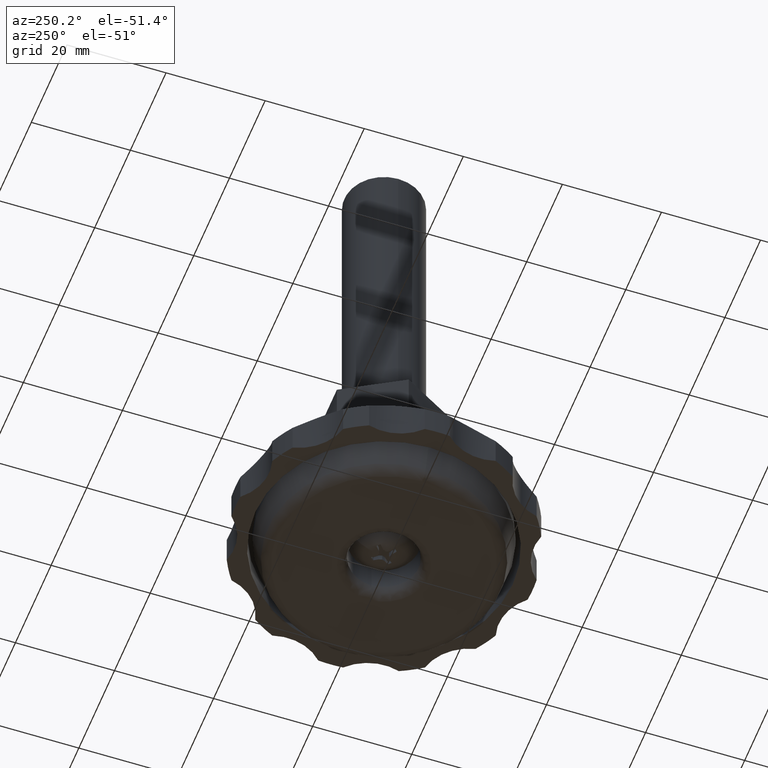
[diagram: clean part render]
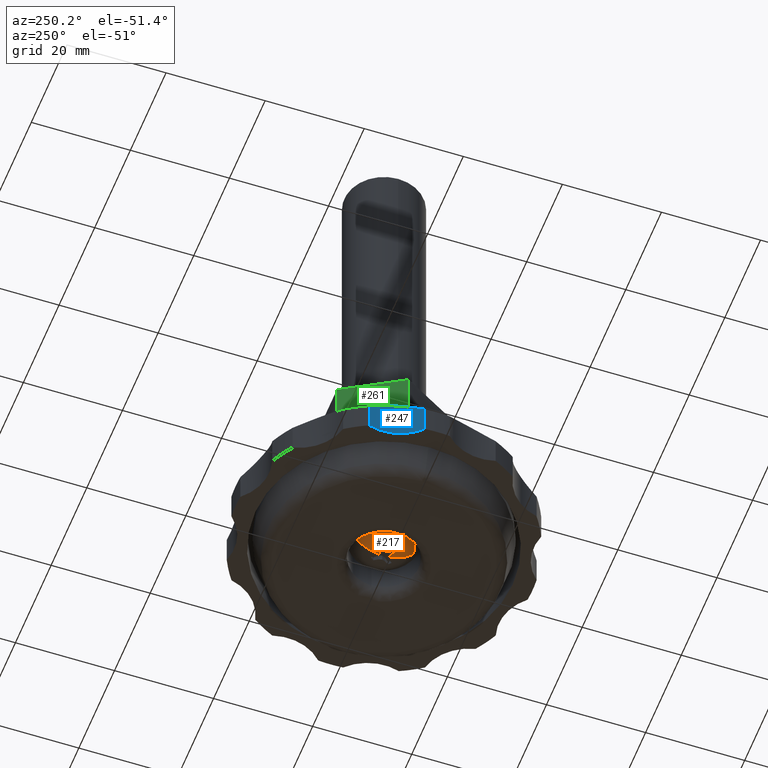
[diagram: same view with three faces highlighted in distinct colors, each labeled with its STEP entity id]
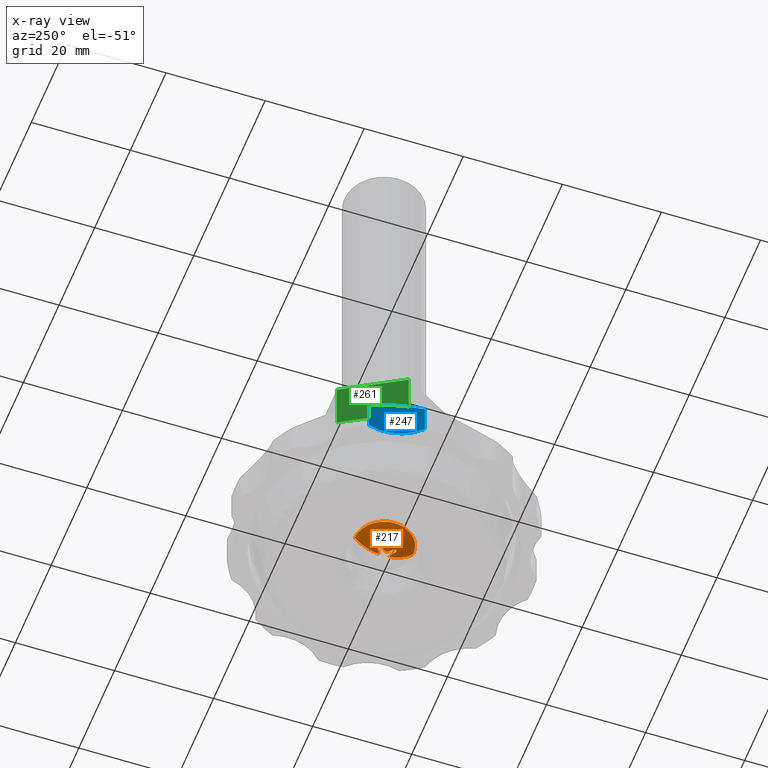
[diagram: x-ray of the same camera — body ghosted, the three highlighted faces saturated]
A machine part, auxiliary view with three faces highlighted in distinct colors.
The next image is the same camera in x-ray (body ghosted, the three faces saturated) — at least one of them is partly hidden behind the body in this view.
Their STEP definitions:

[orange] entity #217 — the highlighted spherical surface has radius 7.3017 mm.
#217=ADVANCED_FACE('',(#608),#607,.T.);
#607=SPHERICAL_SURFACE('',#1545,7.30166666667E+00);
#608=FACE_OUTER_BOUND('',#1546,.T.);
#1542=CARTESIAN_POINT('',(0.00000000000E+00,0.00000000000E+00,1.25016666667E+01));
#1543=DIRECTION('',(0.00000000000E+00,0.00000000000E+00,-1.00000000000E+00));
#1544=DIRECTION('',(1.60816309500E-16,-1.00000000000E+00,0.00000000000E+00));
#1545=AXIS2_PLACEMENT_3D('',#1542,#1543,#1544);
#1546=EDGE_LOOP('',(#2319,#2320,#2321,#2322,#2323,#2324,#2325,#2326,#2327,#2328,#2329,#2330,#2331,#2332));
#2319=ORIENTED_EDGE('',*,*,#2756,.T.);
#2320=ORIENTED_EDGE('',*,*,#2754,.T.);
#2321=ORIENTED_EDGE('',*,*,#2752,.T.);
#2322=ORIENTED_EDGE('',*,*,#2750,.T.);
#2323=ORIENTED_EDGE('',*,*,#2748,.T.);
#2324=ORIENTED_EDGE('',*,*,#2746,.T.);
#2325=ORIENTED_EDGE('',*,*,#2744,.T.);
#2326=ORIENTED_EDGE('',*,*,#2726,.T.);
#2327=ORIENTED_EDGE('',*,*,#2767,.T.);
#2328=ORIENTED_EDGE('',*,*,#2769,.T.);
#2329=ORIENTED_EDGE('',*,*,#2775,.F.);
#2330=ORIENTED_EDGE('',*,*,#2716,.T.);
#2331=ORIENTED_EDGE('',*,*,#2718,.T.);
#2332=ORIENTED_EDGE('',*,*,#2776,.T.);
#2716=EDGE_CURVE('',#3099,#3100,#3101,.T.);
#2718=EDGE_CURVE('',#3100,#3107,#3114,.T.);
#2726=EDGE_CURVE('',#3149,#3163,#3170,.T.);
#2744=EDGE_CURVE('',#3286,#3149,#3293,.T.);
#2746=EDGE_CURVE('',#3299,#3286,#3306,.T.);
#2748=EDGE_CURVE('',#3312,#3299,#3319,.T.);
#2750=EDGE_CURVE('',#3325,#3312,#3332,.T.);
#2752=EDGE_CURVE('',#3338,#3325,#3345,.T.);
#2754=EDGE_CURVE('',#3351,#3338,#3358,.T.);
#2756=EDGE_CURVE('',#3364,#3351,#3371,.T.);
#2767=EDGE_CURVE('',#3163,#3435,#3442,.T.);
#2769=EDGE_CURVE('',#3435,#3448,#3455,.T.);
#2775=EDGE_CURVE('',#3099,#3448,#3492,.T.);
#2776=EDGE_CURVE('',#3107,#3364,#3498,.T.);
#3099=VERTEX_POINT('',#4746);
#3100=VERTEX_POINT('',#4747);
#3101=CIRCLE('',#4751,5.90000000000E+00);
#3107=VERTEX_POINT('',#4752);
#3114=CIRCLE('',#4760,5.90000000000E+00);
#3149=VERTEX_POINT('',#4782);
#3163=VERTEX_POINT('',#4791);
#3170=CIRCLE('',#4798,2.50000000000E+00);
#3286=VERTEX_POINT('',#4863);
#3293=CIRCLE('',#4870,7.28704093264E+00);
#3299=VERTEX_POINT('',#4871);
#3306=CIRCLE('',#4878,7.23723994764E+00);
#3312=VERTEX_POINT('',#4879);
#3319=CIRCLE('',#4886,7.23714202841E+00);
#3325=VERTEX_POINT('',#4887);
#3332=CIRCLE('',#4894,7.28704093264E+00);
#3338=VERTEX_POINT('',#4895);
#3345=CIRCLE('',#4902,2.50000000000E+00);
#3351=VERTEX_POINT('',#4903);
#3358=CIRCLE('',#4910,7.28690101949E+00);
#3364=VERTEX_POINT('',#4911);
#3371=CIRCLE('',#4918,7.23720428537E+00);
#3435=VERTEX_POINT('',#4955);
#3442=CIRCLE('',#4962,7.28690101949E+00);
#3448=VERTEX_POINT('',#4963);
#3455=CIRCLE('',#4970,7.23711870020E+00);
#3492=(BOUNDED_CURVE() B_SPLINE_CURVE(2,(#4987,#4988,#4989),.UNSPECIFIED.,.F.,.F.) B_SPLINE_CURVE_WITH_KNOTS((3,3),(0.00000000000E+00,9.99874347447E-01),.UNSPECIFIED.) CURVE() GEOMETRIC_REPRESENTATION_ITEM() RATIONAL_B_SPLINE_CURVE((1.00000000000E+00,9.21219301708E-01,9.99980202008E-01)) REPRESENTATION_ITEM('') );
#3498=(BOUNDED_CURVE() B_SPLINE_CURVE(2,(#4990,#4991,#4992),.UNSPECIFIED.,.F.,.F.) B_SPLINE_CURVE_WITH_KNOTS((3,3),(0.00000000000E+00,1.00000000000E+00),.UNSPECIFIED.) CURVE() GEOMETRIC_REPRESENTATION_ITEM() RATIONAL_B_SPLINE_CURVE((7.50000000000E-01,6.90907051101E-01,7.50000000000E-01)) REPRESENTATION_ITEM('') );
#4746=CARTESIAN_POINT('',(-1.58802941861E-07,-5.90000000000E+00,8.20000000000E+00));
#4747=CARTESIAN_POINT('',(-5.90000000000E+00,0.00000000000E+00,8.20000000000E+00));
#4748=CARTESIAN_POINT('',(0.00000000000E+00,0.00000000000E+00,8.20000000000E+00));
#4749=DIRECTION('',(-0.00000000000E+00,0.00000000000E+00,-1.00000000000E+00));
#4750=DIRECTION('',(-1.00000000000E+00,-1.22460635382E-16,0.00000000000E+00));
#4751=AXIS2_PLACEMENT_3D('',#4748,#4749,#4750);
#4752=CARTESIAN_POINT('',(6.12313901473E-04,5.89999996823E+00,8.20000000000E+00));
#4757=CARTESIAN_POINT('',(0.00000000000E+00,0.00000000000E+00,8.20000000000E+00));
#4758=DIRECTION('',(-0.00000000000E+00,0.00000000000E+00,-1.00000000000E+00));
#4759=DIRECTION('',(-1.00000000000E+00,-1.22460635382E-16,0.00000000000E+00));
#4760=AXIS2_PLACEMENT_3D('',#4757,#4758,#4759);
#4782=CARTESIAN_POINT('',(-2.03962195924E+00,-1.44566326072E+00,5.64132147775E+00));
#4791=CARTESIAN_POINT('',(-1.44566360983E+00,-2.03962171179E+00,5.64132147775E+00));
#4795=CARTESIAN_POINT('',(0.00000000000E+00,0.00000000000E+00,5.64132147775E+00));
#4796=DIRECTION('',(-0.00000000000E+00,0.00000000000E+00,1.00000000000E+00));
#4797=DIRECTION('',(-1.00000000000E+00,-0.00000000000E+00,-0.00000000000E+00));
#4798=AXIS2_PLACEMENT_3D('',#4795,#4796,#4797);
#4863=CARTESIAN_POINT('',(-1.26430700000E+00,-6.43467000000E-01,5.33913819267E+00));
#4867=CARTESIAN_POINT('',(-3.32144737192E-01,3.21014689280E-01,1.25016666667E+01));
#4868=DIRECTION('',(-7.19051720583E-01,6.94956562043E-01,0.00000000000E+00));
#4869=DIRECTION('',(6.94956562043E-01,7.19051720583E-01,-0.00000000000E+00));
#4870=AXIS2_PLACEMENT_3D('',#4867,#4868,#4869);
#4871=CARTESIAN_POINT('',(-1.03025500000E+00,-7.07000000020E-04,5.27304921613E+00));
#4875=CARTESIAN_POINT('',(-9.09413858313E-01,3.31150246384E-01,1.25016666667E+01));
#4876=DIRECTION('',(-9.39642576268E-01,3.42157608222E-01,0.00000000000E+00));
#4877=DIRECTION('',(3.42157608222E-01,9.39642576268E-01,-0.00000000000E+00));
#4878=AXIS2_PLACEMENT_3D('',#4875,#4876,#4877);
#4879=CARTESIAN_POINT('',(-1.26430700000E+00,6.43467000000E-01,5.33913819267E+00));
#4883=CARTESIAN_POINT('',(-9.10335330328E-01,-3.30758156544E-01,1.25016666667E+01));
#4884=DIRECTION('',(-9.39883873121E-01,-3.41494224032E-01,0.00000000000E+00));
#4885=DIRECTION('',(-3.41494224032E-01,9.39883873121E-01,-0.00000000000E+00));
#4886=AXIS2_PLACEMENT_3D('',#4883,#4884,#4885);
#4887=CARTESIAN_POINT('',(-2.03962195924E+00,1.44566326072E+00,5.64132147775E+00));
#4891=CARTESIAN_POINT('',(-3.32144737192E-01,-3.21014689280E-01,1.25016666667E+01));
#4892=DIRECTION('',(-7.19051720583E-01,-6.94956562043E-01,0.00000000000E+00));
#4893=DIRECTION('',(-6.94956562043E-01,7.19051720583E-01,-0.00000000000E+00));
#4894=AXIS2_PLACEMENT_3D('',#4891,#4892,#4893);
#4895=CARTESIAN_POINT('',(-1.44566360983E+00,2.03962171179E+00,5.64132147775E+00));
#4899=CARTESIAN_POINT('',(0.00000000000E+00,0.00000000000E+00,5.64132147775E+00));
#4900=DIRECTION('',(-0.00000000000E+00,0.00000000000E+00,1.00000000000E+00));
#4901=DIRECTION('',(-1.00000000000E+00,-0.00000000000E+00,-0.00000000000E+00));
#4902=AXIS2_PLACEMENT_3D('',#4899,#4900,#4901);
#4903=CARTESIAN_POINT('',(-6.42760000000E-01,1.26501400000E+00,5.33919954470E+00));
#4907=CARTESIAN_POINT('',(3.22245637661E-01,3.34017053780E-01,1.25016666667E+01));
#4908=DIRECTION('',(6.94311687982E-01,7.19674426342E-01,0.00000000000E+00));
#4909=DIRECTION('',(7.19674426342E-01,-6.94311687982E-01,-0.00000000000E+00));
#4910=AXIS2_PLACEMENT_3D('',#4907,#4908,#4909);
#4911=CARTESIAN_POINT('',(7.06999999991E-04,1.03025500000E+00,5.27304921613E+00));
#4915=CARTESIAN_POINT('',(3.31802420206E-01,9.09459947958E-01,1.25016666667E+01));
#4916=DIRECTION('',(3.42737035721E-01,9.39431383522E-01,0.00000000000E+00));
#4917=DIRECTION('',(9.39431383522E-01,-3.42737035721E-01,-0.00000000000E+00));
#4918=AXIS2_PLACEMENT_3D('',#4915,#4916,#4917);
#4955=CARTESIAN_POINT('',(-6.42760000000E-01,-1.26501400000E+00,5.33919954470E+00));
#4959=CARTESIAN_POINT('',(3.22245637661E-01,-3.34017053780E-01,1.25016666667E+01));
#4960=DIRECTION('',(6.94311687982E-01,-7.19674426342E-01,0.00000000000E+00));
#4961=DIRECTION('',(-7.19674426342E-01,-6.94311687982E-01,-0.00000000000E+00));
#4962=AXIS2_PLACEMENT_3D('',#4959,#4960,#4961);
#4963=CARTESIAN_POINT('',(5.42101086243E-17,-1.03096200000E+00,5.27314998164E+00));
#4967=CARTESIAN_POINT('',(3.31460320808E-01,-9.10265393171E-01,1.25016666667E+01));
#4968=DIRECTION('',(3.42157608222E-01,-9.39642576268E-01,0.00000000000E+00));
#4969=DIRECTION('',(-9.39642576268E-01,-3.42157608222E-01,-0.00000000000E+00));
#4970=AXIS2_PLACEMENT_3D('',#4967,#4968,#4969);
#4987=CARTESIAN_POINT('',(9.48816226051E-16,-5.90000000000E+00,8.20000000000E+00));
#4988=CARTESIAN_POINT('',(6.56687816329E-16,-4.08346528017E+00,5.70851107780E+00));
#4989=CARTESIAN_POINT('',(1.65795507216E-16,-1.03096201953E+00,5.27314998443E+00));
#4990=CARTESIAN_POINT('',(-1.18423789293E-15,5.90000000000E+00,8.20000000000E+00));
#4991=CARTESIAN_POINT('',(-8.03453245162E-16,4.08321747450E+00,5.70817119711E+00));
#4992=CARTESIAN_POINT('',(-1.11022302463E-16,1.03025524258E+00,5.27304921613E+00));

[blue] entity #247 — the highlighted cylindrical surface (partial cylindrical patch) has radius 10 mm, axis along (0, 0, 1).
#247=ADVANCED_FACE('',(#913),#912,.F.);
#912=CYLINDRICAL_SURFACE('',#1796,1.00000000000E+01);
#913=FACE_OUTER_BOUND('',#1797,.T.);
#1793=CARTESIAN_POINT('',(-3.67051810000E+01,9.83512400000E+00,1.00500000000E+03));
#1794=DIRECTION('',(-0.00000000000E+00,-0.00000000000E+00,1.00000000000E+00));
#1795=DIRECTION('',(6.80967625917E-01,-7.32313520600E-01,-0.00000000000E+00));
#1796=AXIS2_PLACEMENT_3D('',#1793,#1794,#1795);
#1797=EDGE_LOOP('',(#2454,#2455,#2456,#2457));
#2454=ORIENTED_EDGE('',*,*,#2855,.T.);
#2455=ORIENTED_EDGE('',*,*,#2856,.F.);
#2456=ORIENTED_EDGE('',*,*,#2857,.F.);
#2457=ORIENTED_EDGE('',*,*,#2858,.F.);
#2855=EDGE_CURVE('',#4037,#4038,#4039,.T.);
#2856=EDGE_CURVE('',#4045,#4038,#4046,.T.);
#2857=EDGE_CURVE('',#4052,#4045,#4053,.T.);
#2858=EDGE_CURVE('',#4037,#4052,#4059,.T.);
#4037=VERTEX_POINT('',#5462);
#4038=VERTEX_POINT('',#5463);
#4039=LINE('',#5464,#5465);
#4045=VERTEX_POINT('',#5467);
#4046=CIRCLE('',#5471,1.00000000000E+01);
#4052=VERTEX_POINT('',#5472);
#4053=LINE('',#5473,#5474);
#4059=(BOUNDED_CURVE() B_SPLINE_CURVE(3,(#5476,#5477,#5478,#5479,#5480,#5481,#5482,#5483,#5484,#5485,#5486,#5487,#5488,#5489,#5490,#5491,#5492,#5493,#5494,#5495,#5496,#5497,#5498,#5499),.UNSPECIFIED.,.F.,.F.) B_SPLINE_CURVE_WITH_KNOTS((4,2,2,2,2,2,2,2,2,2,2,4),(2.64582014228E-07,1.54217607988E-03,2.31313182881E-03,3.08408757774E-03,4.62599907560E-03,5.39695482453E-03,6.16791057346E-03,6.93886632239E-03,7.70982207132E-03,9.25173356918E-03,1.07936450670E-02,1.23355565649E-02),.UNSPECIFIED.) CURVE() GEOMETRIC_REPRESENTATION_ITEM() RATIONAL_B_SPLINE_CURVE((1.00000000000E+00,1.00000000000E+00,1.00000000000E+00,1.00000000000E+00,1.00000000000E+00,1.00000000000E+00,1.00000000000E+00,1.00000000000E+00,1.00000000000E+00,1.00000000000E+00,1.00000000000E+00,1.00000000000E+00,1.00000000000E+00,1.00000000000E+00,1.00000000000E+00,1.00000000000E+00,1.00000000000E+00,1.00000000000E+00,1.00000000000E+00,1.00000000000E+00,1.00000000000E+00,1.00000000000E+00,1.00000000000E+00,1.00000000000E+00)) REPRESENTATION_ITEM('') );
#5462=CARTESIAN_POINT('',(-2.71458873925E+01,1.27710915962E+01,1.10000000000E+01));
#5463=CARTESIAN_POINT('',(-2.71458873925E+01,1.27710915962E+01,5.00000000000E+00));
#5464=CARTESIAN_POINT('',(-2.71458873925E+01,1.27710915962E+01,1.10000000000E+01));
#5465=VECTOR('',#5466,6.00000000000E+00);
#5466=DIRECTION('',(0.00000000000E+00,0.00000000000E+00,-1.00000000000E+00));
#5467=CARTESIAN_POINT('',(-2.98945741486E+01,2.51285424836E+00,5.00000000000E+00));
#5468=CARTESIAN_POINT('',(-3.67051810000E+01,9.83512400000E+00,5.00000000000E+00));
#5469=DIRECTION('',(-0.00000000000E+00,0.00000000000E+00,1.00000000000E+00));
#5470=DIRECTION('',(9.55929360749E-01,2.93596759617E-01,0.00000000000E+00));
#5471=AXIS2_PLACEMENT_3D('',#5468,#5469,#5470);
#5472=CARTESIAN_POINT('',(-2.98945741392E+01,2.51285436012E+00,1.10000000000E+01));
#5473=CARTESIAN_POINT('',(-2.98945741392E+01,2.51285436012E+00,1.10000000000E+01));
#5474=VECTOR('',#5475,6.00000000000E+00);
#5475=DIRECTION('',(0.00000000000E+00,0.00000000000E+00,-1.00000000000E+00));
#5476=CARTESIAN_POINT('',(-2.71458874354E+01,1.27710917360E+01,1.10000002199E+01));
#5477=CARTESIAN_POINT('',(-2.70266444296E+01,1.23828453378E+01,1.13213840486E+01));
#5478=CARTESIAN_POINT('',(-2.69279323332E+01,1.19780803252E+01,1.16240062431E+01));
#5479=CARTESIAN_POINT('',(-2.68165951845E+01,1.13393127835E+01,1.20413010774E+01));
#5480=CARTESIAN_POINT('',(-2.67856418039E+01,1.11210831804E+01,1.21742483074E+01));
#5481=CARTESIAN_POINT('',(-2.67377210312E+01,1.06721966654E+01,1.24256161551E+01));
#5482=CARTESIAN_POINT('',(-2.67207986216E+01,1.04408701961E+01,1.25442453490E+01));
#5483=CARTESIAN_POINT('',(-2.66946850316E+01,9.73894608204E+00,1.28677000731E+01));
#5484=CARTESIAN_POINT('',(-2.67092209926E+01,9.25679760961E+00,1.30428890816E+01));
#5485=CARTESIAN_POINT('',(-2.67907428662E+01,8.50571211422E+00,1.32264962782E+01));
#5486=CARTESIAN_POINT('',(-2.68279916549E+01,8.25198662097E+00,1.32737938046E+01));
#5487=CARTESIAN_POINT('',(-2.69216535676E+01,7.74998987960E+00,1.33366994791E+01));
#5488=CARTESIAN_POINT('',(-2.69782303781E+01,7.49998821336E+00,1.33527665969E+01));
#5489=CARTESIAN_POINT('',(-2.71114340807E+01,7.00202541499E+00,1.33531136495E+01));
#5490=CARTESIAN_POINT('',(-2.71887970428E+01,6.75222365016E+00,1.33370187894E+01));
#5491=CARTESIAN_POINT('',(-2.73594235269E+01,6.26824084487E+00,1.32739648627E+01));
#5492=CARTESIAN_POINT('',(-2.74527700860E+01,6.03309538153E+00,1.32272786773E+01));
#5493=CARTESIAN_POINT('',(-2.77551564812E+01,5.34656315490E+00,1.30456575007E+01));
#5494=CARTESIAN_POINT('',(-2.79887749309E+01,4.91153485894E+00,1.28668107963E+01));
#5495=CARTESIAN_POINT('',(-2.84848111054E+01,4.12172014694E+00,1.24373280020E+01));
#5496=CARTESIAN_POINT('',(-2.87494499895E+01,3.76095908609E+00,1.21857413405E+01));
#5497=CARTESIAN_POINT('',(-2.93068171025E+01,3.09321425916E+00,1.16266447996E+01));
#5498=CARTESIAN_POINT('',(-2.95969996401E+01,2.78963495678E+00,1.13215824949E+01));
#5499=CARTESIAN_POINT('',(-2.98945741082E+01,2.51285428599E+00,1.10000000437E+01));

[green] entity #261 — the highlighted planar face has unit normal (0.866, -0.5, 0).
#261=ADVANCED_FACE('',(#1055),#1054,.F.);
#1054=PLANE('',#1868);
#1055=FACE_OUTER_BOUND('',#1869,.T.);
#1865=CARTESIAN_POINT('',(-1.45428203000E+01,-1.20000000000E+00,2.90000000000E+01));
#1866=DIRECTION('',(8.66025410981E-01,-4.99999987536E-01,0.00000000000E+00));
#1867=DIRECTION('',(4.99999987536E-01,8.66025410981E-01,0.00000000000E+00));
#1868=AXIS2_PLACEMENT_3D('',#1865,#1866,#1867);
#1869=EDGE_LOOP('',(#2533,#2534,#2535,#2536));
#2533=ORIENTED_EDGE('',*,*,#2817,.T.);
#2534=ORIENTED_EDGE('',*,*,#2903,.F.);
#2535=ORIENTED_EDGE('',*,*,#2825,.F.);
#2536=ORIENTED_EDGE('',*,*,#2904,.T.);
#2817=EDGE_CURVE('',#3772,#3773,#3774,.T.);
#2825=EDGE_CURVE('',#3821,#3828,#3829,.T.);
#2903=EDGE_CURVE('',#3828,#3773,#4353,.T.);
#2904=EDGE_CURVE('',#3821,#3772,#4359,.T.);
#3772=VERTEX_POINT('',#5178);
#3773=VERTEX_POINT('',#5179);
#3774=(BOUNDED_CURVE() B_SPLINE_CURVE(1,(#5180,#5181),.UNSPECIFIED.,.F.,.F.) B_SPLINE_CURVE_WITH_KNOTS((2,2),(0.00000000000E+00,1.00000000000E+00),.UNSPECIFIED.) CURVE() GEOMETRIC_REPRESENTATION_ITEM() RATIONAL_B_SPLINE_CURVE((1.00000000000E+00,1.00000000000E+00)) REPRESENTATION_ITEM('') );
#3821=VERTEX_POINT('',#5205);
#3828=VERTEX_POINT('',#5209);
#3829=LINE('',#5210,#5211);
#4353=LINE('',#5722,#5723);
#4359=(BOUNDED_CURVE() B_SPLINE_CURVE(1,(#5725,#5726),.UNSPECIFIED.,.F.,.F.) B_SPLINE_CURVE_WITH_KNOTS((2,2),(0.00000000000E+00,1.00000000000E+00),.UNSPECIFIED.) CURVE() GEOMETRIC_REPRESENTATION_ITEM() RATIONAL_B_SPLINE_CURVE((1.00000000000E+00,1.00000000000E+00)) REPRESENTATION_ITEM('') );
#5178=CARTESIAN_POINT('',(-6.92500034525E+00,1.19944516431E+01,3.00000000000E+01));
#5179=CARTESIAN_POINT('',(-1.38500000000E+01,8.67361737988E-16,3.00000000000E+01));
#5180=CARTESIAN_POINT('',(-6.92500034525E+00,1.19944516431E+01,3.00000000000E+01));
#5181=CARTESIAN_POINT('',(-1.38500000000E+01,3.55271367880E-15,3.00000000000E+01));
#5205=CARTESIAN_POINT('',(-6.92179700000E+00,1.20000000000E+01,4.00000000000E+01));
#5209=CARTESIAN_POINT('',(-1.38500000000E+01,0.00000000000E+00,4.00000000000E+01));
#5210=CARTESIAN_POINT('',(-6.92179700000E+00,1.20000000000E+01,4.00000000000E+01));
#5211=VECTOR('',#5212,1.38564063454E+01);
#5212=DIRECTION('',(-4.99999987536E-01,-8.66025410981E-01,0.00000000000E+00));
#5722=CARTESIAN_POINT('',(-1.38500000000E+01,0.00000000000E+00,4.00000000000E+01));
#5723=VECTOR('',#5724,1.00000000000E+01);
#5724=DIRECTION('',(0.00000000000E+00,0.00000000000E+00,-1.00000000000E+00));
#5725=CARTESIAN_POINT('',(-6.92179700000E+00,1.20000000000E+01,4.00000000000E+01));
#5726=CARTESIAN_POINT('',(-6.92500034525E+00,1.19944516431E+01,3.00000000000E+01));